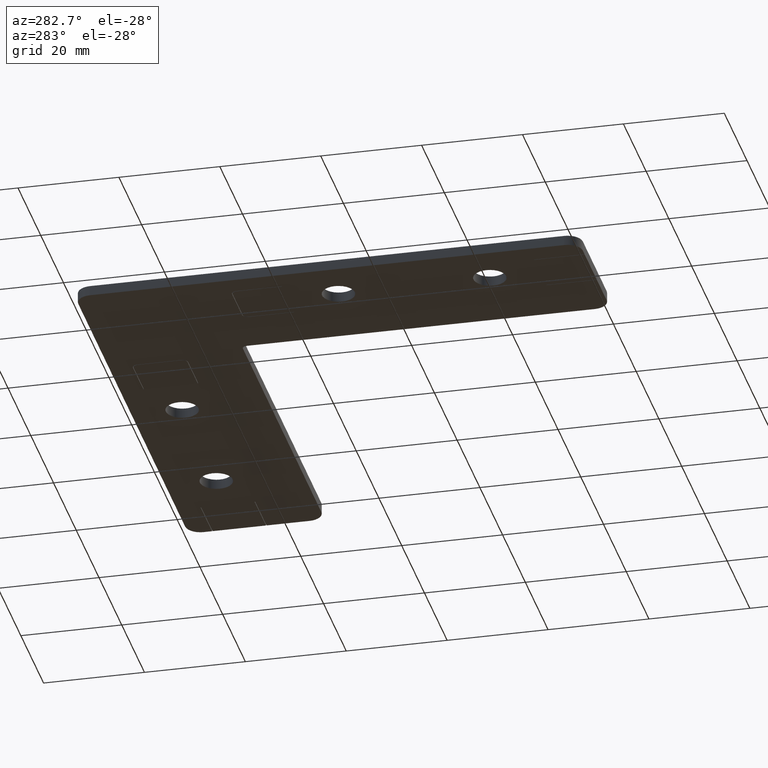
[diagram: clean part render]
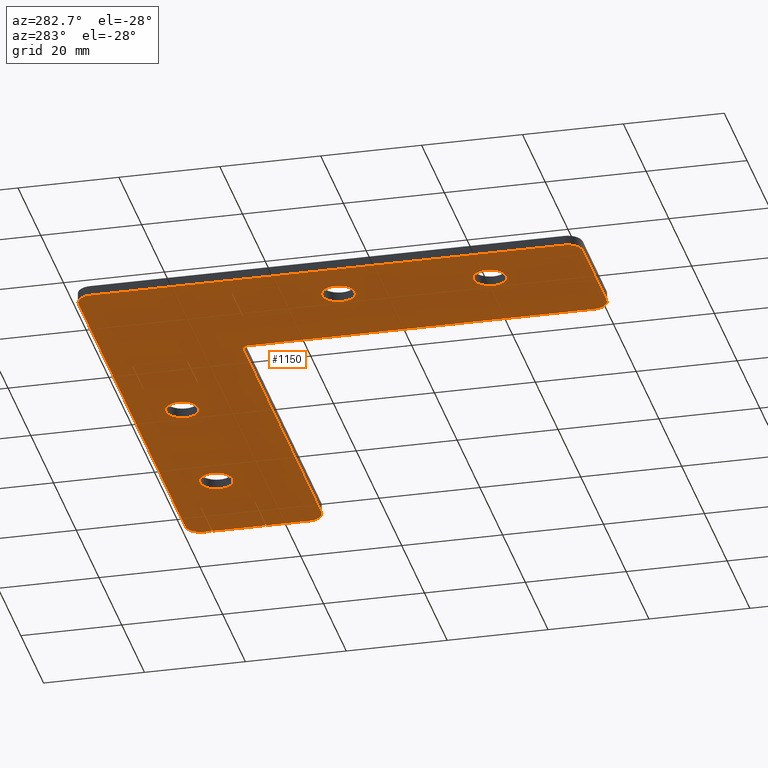
[diagram: same view with one face highlighted and labeled with its STEP entity id]
A machine part, auxiliary view. The second image highlights one B-rep face of the part: STEP entity #1150.
In plain terms, the highlighted planar face has unit normal (0, 0, 1).
Its self-contained STEP definition (entity closure, byte-faithful):
#21=FACE_BOUND('',#153,.T.);
#22=FACE_BOUND('',#154,.T.);
#23=FACE_BOUND('',#155,.T.);
#24=FACE_BOUND('',#156,.T.);
#25=FACE_BOUND('',#157,.T.);
#26=FACE_BOUND('',#158,.T.);
#38=PLANE('',#1259);
#88=FACE_OUTER_BOUND('',#152,.T.);
#152=EDGE_LOOP('',(#911,#912,#913,#914,#915,#916,#917,#918,#919,#920,#921,
#922,#923,#924,#925,#926,#927,#928,#929,#930,#931,#932,#933,#934,#935,#936,
#937,#938));
#153=EDGE_LOOP('',(#939));
#154=EDGE_LOOP('',(#940));
#155=EDGE_LOOP('',(#941));
#156=EDGE_LOOP('',(#942));
#157=EDGE_LOOP('',(#943,#944,#945,#946,#947,#948,#949,#950,#951,#952,#953,
#954));
#158=EDGE_LOOP('',(#955,#956,#957,#958,#959,#960,#961,#962,#963,#964,#965,
#966));
#195=CIRCLE('',#1211,1.);
#197=CIRCLE('',#1215,3.);
#199=CIRCLE('',#1221,3.);
#201=CIRCLE('',#1225,3.);
#203=CIRCLE('',#1229,3.);
#205=CIRCLE('',#1235,3.);
#208=CIRCLE('',#1240,3.25);
#210=CIRCLE('',#1243,3.25);
#212=CIRCLE('',#1246,3.25);
#214=CIRCLE('',#1249,3.25);
#223=CIRCLE('',#1260,1.);
#224=CIRCLE('',#1261,1.);
#225=CIRCLE('',#1262,1.1);
#226=CIRCLE('',#1263,1.1);
#227=CIRCLE('',#1264,1.);
#228=CIRCLE('',#1265,0.999999999999886);
#229=CIRCLE('',#1266,1.09999999999989);
#230=CIRCLE('',#1267,1.1);
#233=LINE('',#1638,#365);
#237=LINE('',#1650,#369);
#242=LINE('',#1661,#374);
#245=LINE('',#1668,#377);
#249=LINE('',#1680,#381);
#253=LINE('',#1692,#385);
#257=LINE('',#1704,#389);
#262=LINE('',#1715,#394);
#265=LINE('',#1722,#397);
#269=LINE('',#1733,#401);
#303=LINE('',#1830,#435);
#304=LINE('',#1832,#436);
#305=LINE('',#1833,#437);
#306=LINE('',#1835,#438);
#307=LINE('',#1837,#439);
#308=LINE('',#1838,#440);
#309=LINE('',#1840,#441);
#310=LINE('',#1842,#442);
#311=LINE('',#1843,#443);
#312=LINE('',#1845,#444);
#313=LINE('',#1847,#445);
#314=LINE('',#1848,#446);
#315=LINE('',#1851,#447);
#316=LINE('',#1853,#448);
#317=LINE('',#1857,#449);
#318=LINE('',#1861,#450);
#319=LINE('',#1863,#451);
#320=LINE('',#1865,#452);
#321=LINE('',#1869,#453);
#322=LINE('',#1872,#454);
#323=LINE('',#1875,#455);
#324=LINE('',#1877,#456);
#325=LINE('',#1881,#457);
#326=LINE('',#1885,#458);
#327=LINE('',#1887,#459);
#328=LINE('',#1889,#460);
#329=LINE('',#1893,#461);
#330=LINE('',#1896,#462);
#365=VECTOR('',#1316,68.9998597412108);
#369=VECTOR('',#1328,8.55000000000002);
#374=VECTOR('',#1335,1.65000000000003);
#377=VECTOR('',#1340,10.6);
#381=VECTOR('',#1352,93.9998597412108);
#385=VECTOR('',#1364,93.9998597412109);
#389=VECTOR('',#1376,1.55000000000004);
#394=VECTOR('',#1383,8.65000000000004);
#397=VECTOR('',#1388,10.5999999999999);
#401=VECTOR('',#1400,68.9998597412109);
#435=VECTOR('',#1478,10.);
#436=VECTOR('',#1479,0.0999999999999923);
#437=VECTOR('',#1480,10.);
#438=VECTOR('',#1481,10.);
#439=VECTOR('',#1482,0.0999999999999945);
#440=VECTOR('',#1483,10.);
#441=VECTOR('',#1484,9.99999999999998);
#442=VECTOR('',#1485,0.0999999999999979);
#443=VECTOR('',#1486,9.99999999999998);
#444=VECTOR('',#1487,9.99999999999998);
#445=VECTOR('',#1488,0.0999999999999979);
#446=VECTOR('',#1489,9.99999999999998);
#447=VECTOR('',#1490,0.0999999999999945);
#448=VECTOR('',#1491,9.);
#449=VECTOR('',#1494,8.69999999999993);
#450=VECTOR('',#1497,9.);
#451=VECTOR('',#1498,0.0999999999999979);
#452=VECTOR('',#1499,9.);
#453=VECTOR('',#1502,8.69999999999993);
#454=VECTOR('',#1505,9.);
#455=VECTOR('',#1506,0.0999999999999979);
#456=VECTOR('',#1507,9.);
#457=VECTOR('',#1510,8.70000000000008);
#458=VECTOR('',#1513,9.00000000000011);
#459=VECTOR('',#1514,0.0999999999999979);
#460=VECTOR('',#1515,9.00000000000011);
#461=VECTOR('',#1518,8.70000000000008);
#462=VECTOR('',#1521,9.);
#496=VERTEX_POINT('',#1629);
#497=VERTEX_POINT('',#1631);
#499=VERTEX_POINT('',#1637);
#501=VERTEX_POINT('',#1643);
#503=VERTEX_POINT('',#1649);
#507=VERTEX_POINT('',#1658);
#508=VERTEX_POINT('',#1660);
#510=VERTEX_POINT('',#1665);
#511=VERTEX_POINT('',#1667);
#513=VERTEX_POINT('',#1673);
#515=VERTEX_POINT('',#1679);
#517=VERTEX_POINT('',#1685);
#519=VERTEX_POINT('',#1691);
#521=VERTEX_POINT('',#1697);
#523=VERTEX_POINT('',#1703);
#527=VERTEX_POINT('',#1712);
#528=VERTEX_POINT('',#1714);
#530=VERTEX_POINT('',#1719);
#531=VERTEX_POINT('',#1721);
#533=VERTEX_POINT('',#1727);
#536=VERTEX_POINT('',#1738);
#538=VERTEX_POINT('',#1744);
#540=VERTEX_POINT('',#1750);
#542=VERTEX_POINT('',#1756);
#575=VERTEX_POINT('',#1829);
#576=VERTEX_POINT('',#1831);
#577=VERTEX_POINT('',#1834);
#578=VERTEX_POINT('',#1836);
#579=VERTEX_POINT('',#1839);
#580=VERTEX_POINT('',#1841);
#581=VERTEX_POINT('',#1844);
#582=VERTEX_POINT('',#1846);
#583=VERTEX_POINT('',#1849);
#584=VERTEX_POINT('',#1850);
#585=VERTEX_POINT('',#1852);
#586=VERTEX_POINT('',#1854);
#587=VERTEX_POINT('',#1856);
#588=VERTEX_POINT('',#1858);
#589=VERTEX_POINT('',#1860);
#590=VERTEX_POINT('',#1862);
#591=VERTEX_POINT('',#1864);
#592=VERTEX_POINT('',#1866);
#593=VERTEX_POINT('',#1868);
#594=VERTEX_POINT('',#1870);
#595=VERTEX_POINT('',#1873);
#596=VERTEX_POINT('',#1874);
#597=VERTEX_POINT('',#1876);
#598=VERTEX_POINT('',#1878);
#599=VERTEX_POINT('',#1880);
#600=VERTEX_POINT('',#1882);
#601=VERTEX_POINT('',#1884);
#602=VERTEX_POINT('',#1886);
#603=VERTEX_POINT('',#1888);
#604=VERTEX_POINT('',#1890);
#605=VERTEX_POINT('',#1892);
#606=VERTEX_POINT('',#1894);
#608=EDGE_CURVE('',#496,#497,#195,.T.);
#611=EDGE_CURVE('',#497,#499,#233,.T.);
#614=EDGE_CURVE('',#499,#501,#197,.T.);
#617=EDGE_CURVE('',#501,#503,#237,.T.);
#622=EDGE_CURVE('',#507,#508,#242,.T.);
#625=EDGE_CURVE('',#510,#511,#245,.T.);
#628=EDGE_CURVE('',#508,#513,#199,.T.);
#631=EDGE_CURVE('',#513,#515,#249,.T.);
#634=EDGE_CURVE('',#515,#517,#201,.T.);
#637=EDGE_CURVE('',#517,#519,#253,.T.);
#640=EDGE_CURVE('',#519,#521,#203,.T.);
#643=EDGE_CURVE('',#521,#523,#257,.T.);
#648=EDGE_CURVE('',#527,#528,#262,.T.);
#651=EDGE_CURVE('',#530,#531,#265,.T.);
#654=EDGE_CURVE('',#528,#533,#205,.T.);
#657=EDGE_CURVE('',#533,#496,#269,.T.);
#661=EDGE_CURVE('',#536,#536,#208,.T.);
#664=EDGE_CURVE('',#538,#538,#210,.T.);
#667=EDGE_CURVE('',#540,#540,#212,.T.);
#670=EDGE_CURVE('',#542,#542,#214,.T.);
#707=EDGE_CURVE('',#527,#575,#303,.T.);
#708=EDGE_CURVE('',#576,#575,#304,.T.);
#709=EDGE_CURVE('',#531,#576,#305,.T.);
#710=EDGE_CURVE('',#530,#577,#306,.T.);
#711=EDGE_CURVE('',#578,#577,#307,.T.);
#712=EDGE_CURVE('',#523,#578,#308,.T.);
#713=EDGE_CURVE('',#507,#579,#309,.T.);
#714=EDGE_CURVE('',#580,#579,#310,.T.);
#715=EDGE_CURVE('',#511,#580,#311,.T.);
#716=EDGE_CURVE('',#510,#581,#312,.T.);
#717=EDGE_CURVE('',#582,#581,#313,.T.);
#718=EDGE_CURVE('',#503,#582,#314,.T.);
#719=EDGE_CURVE('',#583,#584,#315,.T.);
#720=EDGE_CURVE('',#584,#585,#316,.T.);
#721=EDGE_CURVE('',#586,#585,#223,.T.);
#722=EDGE_CURVE('',#586,#587,#317,.T.);
#723=EDGE_CURVE('',#588,#587,#224,.T.);
#724=EDGE_CURVE('',#588,#589,#318,.T.);
#725=EDGE_CURVE('',#589,#590,#319,.T.);
#726=EDGE_CURVE('',#590,#591,#320,.T.);
#727=EDGE_CURVE('',#592,#591,#225,.T.);
#728=EDGE_CURVE('',#592,#593,#321,.T.);
#729=EDGE_CURVE('',#594,#593,#226,.T.);
#730=EDGE_CURVE('',#583,#594,#322,.T.);
#731=EDGE_CURVE('',#595,#596,#323,.T.);
#732=EDGE_CURVE('',#596,#597,#324,.T.);
#733=EDGE_CURVE('',#598,#597,#227,.T.);
#734=EDGE_CURVE('',#598,#599,#325,.T.);
#735=EDGE_CURVE('',#600,#599,#228,.T.);
#736=EDGE_CURVE('',#600,#601,#326,.T.);
#737=EDGE_CURVE('',#601,#602,#327,.T.);
#738=EDGE_CURVE('',#602,#603,#328,.T.);
#739=EDGE_CURVE('',#604,#603,#229,.T.);
#740=EDGE_CURVE('',#604,#605,#329,.T.);
#741=EDGE_CURVE('',#606,#605,#230,.T.);
#742=EDGE_CURVE('',#595,#606,#330,.T.);
#911=ORIENTED_EDGE('',*,*,#657,.F.);
#912=ORIENTED_EDGE('',*,*,#654,.F.);
#913=ORIENTED_EDGE('',*,*,#648,.F.);
#914=ORIENTED_EDGE('',*,*,#707,.T.);
#915=ORIENTED_EDGE('',*,*,#708,.F.);
#916=ORIENTED_EDGE('',*,*,#709,.F.);
#917=ORIENTED_EDGE('',*,*,#651,.F.);
#918=ORIENTED_EDGE('',*,*,#710,.T.);
#919=ORIENTED_EDGE('',*,*,#711,.F.);
#920=ORIENTED_EDGE('',*,*,#712,.F.);
#921=ORIENTED_EDGE('',*,*,#643,.F.);
#922=ORIENTED_EDGE('',*,*,#640,.F.);
#923=ORIENTED_EDGE('',*,*,#637,.F.);
#924=ORIENTED_EDGE('',*,*,#634,.F.);
#925=ORIENTED_EDGE('',*,*,#631,.F.);
#926=ORIENTED_EDGE('',*,*,#628,.F.);
#927=ORIENTED_EDGE('',*,*,#622,.F.);
#928=ORIENTED_EDGE('',*,*,#713,.T.);
#929=ORIENTED_EDGE('',*,*,#714,.F.);
#930=ORIENTED_EDGE('',*,*,#715,.F.);
#931=ORIENTED_EDGE('',*,*,#625,.F.);
#932=ORIENTED_EDGE('',*,*,#716,.T.);
#933=ORIENTED_EDGE('',*,*,#717,.F.);
#934=ORIENTED_EDGE('',*,*,#718,.F.);
#935=ORIENTED_EDGE('',*,*,#617,.F.);
#936=ORIENTED_EDGE('',*,*,#614,.F.);
#937=ORIENTED_EDGE('',*,*,#611,.F.);
#938=ORIENTED_EDGE('',*,*,#608,.F.);
#939=ORIENTED_EDGE('',*,*,#661,.F.);
#940=ORIENTED_EDGE('',*,*,#664,.F.);
#941=ORIENTED_EDGE('',*,*,#667,.F.);
#942=ORIENTED_EDGE('',*,*,#670,.F.);
#943=ORIENTED_EDGE('',*,*,#719,.T.);
#944=ORIENTED_EDGE('',*,*,#720,.T.);
#945=ORIENTED_EDGE('',*,*,#721,.F.);
#946=ORIENTED_EDGE('',*,*,#722,.T.);
#947=ORIENTED_EDGE('',*,*,#723,.F.);
#948=ORIENTED_EDGE('',*,*,#724,.T.);
#949=ORIENTED_EDGE('',*,*,#725,.T.);
#950=ORIENTED_EDGE('',*,*,#726,.T.);
#951=ORIENTED_EDGE('',*,*,#727,.F.);
#952=ORIENTED_EDGE('',*,*,#728,.T.);
#953=ORIENTED_EDGE('',*,*,#729,.F.);
#954=ORIENTED_EDGE('',*,*,#730,.F.);
#955=ORIENTED_EDGE('',*,*,#731,.T.);
#956=ORIENTED_EDGE('',*,*,#732,.T.);
#957=ORIENTED_EDGE('',*,*,#733,.F.);
#958=ORIENTED_EDGE('',*,*,#734,.T.);
#959=ORIENTED_EDGE('',*,*,#735,.F.);
#960=ORIENTED_EDGE('',*,*,#736,.T.);
#961=ORIENTED_EDGE('',*,*,#737,.T.);
#962=ORIENTED_EDGE('',*,*,#738,.T.);
#963=ORIENTED_EDGE('',*,*,#739,.F.);
#964=ORIENTED_EDGE('',*,*,#740,.T.);
#965=ORIENTED_EDGE('',*,*,#741,.F.);
#966=ORIENTED_EDGE('',*,*,#742,.F.);
#1150=ADVANCED_FACE('',(#88,#21,#22,#23,#24,#25,#26),#38,.F.);
#1211=AXIS2_PLACEMENT_3D('',#1632,#1309,#1310);
#1215=AXIS2_PLACEMENT_3D('',#1644,#1321,#1322);
#1221=AXIS2_PLACEMENT_3D('',#1674,#1345,#1346);
#1225=AXIS2_PLACEMENT_3D('',#1686,#1357,#1358);
#1229=AXIS2_PLACEMENT_3D('',#1698,#1369,#1370);
#1235=AXIS2_PLACEMENT_3D('',#1728,#1393,#1394);
#1240=AXIS2_PLACEMENT_3D('',#1740,#1407,#1408);
#1243=AXIS2_PLACEMENT_3D('',#1746,#1414,#1415);
#1246=AXIS2_PLACEMENT_3D('',#1752,#1421,#1422);
#1249=AXIS2_PLACEMENT_3D('',#1758,#1428,#1429);
#1259=AXIS2_PLACEMENT_3D('',#1828,#1476,#1477);
#1260=AXIS2_PLACEMENT_3D('',#1855,#1492,#1493);
#1261=AXIS2_PLACEMENT_3D('',#1859,#1495,#1496);
#1262=AXIS2_PLACEMENT_3D('',#1867,#1500,#1501);
#1263=AXIS2_PLACEMENT_3D('',#1871,#1503,#1504);
#1264=AXIS2_PLACEMENT_3D('',#1879,#1508,#1509);
#1265=AXIS2_PLACEMENT_3D('',#1883,#1511,#1512);
#1266=AXIS2_PLACEMENT_3D('',#1891,#1516,#1517);
#1267=AXIS2_PLACEMENT_3D('',#1895,#1519,#1520);
#1309=DIRECTION('center_axis',(0.,0.,-1.));
#1310=DIRECTION('ref_axis',(1.,0.,0.));
#1316=DIRECTION('',(1.,0.,0.));
#1321=DIRECTION('center_axis',(0.,0.,1.));
#1322=DIRECTION('ref_axis',(1.,0.,0.));
#1328=DIRECTION('',(0.,1.,0.));
#1335=DIRECTION('',(0.,1.,0.));
#1340=DIRECTION('',(0.,1.,0.));
#1345=DIRECTION('center_axis',(0.,0.,1.));
#1346=DIRECTION('ref_axis',(1.,0.,0.));
#1352=DIRECTION('',(-1.,0.,0.));
#1357=DIRECTION('center_axis',(0.,0.,1.));
#1358=DIRECTION('ref_axis',(1.,0.,0.));
#1364=DIRECTION('',(0.,-1.,0.));
#1369=DIRECTION('center_axis',(0.,0.,1.));
#1370=DIRECTION('ref_axis',(1.,0.,0.));
#1376=DIRECTION('',(1.,0.,0.));
#1383=DIRECTION('',(1.,0.,0.));
#1388=DIRECTION('',(1.,0.,0.));
#1393=DIRECTION('center_axis',(0.,0.,1.));
#1394=DIRECTION('ref_axis',(1.,0.,0.));
#1400=DIRECTION('',(0.,1.,0.));
#1407=DIRECTION('center_axis',(0.,0.,-1.));
#1408=DIRECTION('ref_axis',(1.,0.,0.));
#1414=DIRECTION('center_axis',(0.,0.,-1.));
#1415=DIRECTION('ref_axis',(1.,0.,0.));
#1421=DIRECTION('center_axis',(0.,0.,-1.));
#1422=DIRECTION('ref_axis',(1.,0.,0.));
#1428=DIRECTION('center_axis',(0.,0.,-1.));
#1429=DIRECTION('ref_axis',(1.,0.,0.));
#1476=DIRECTION('center_axis',(0.,0.,1.));
#1477=DIRECTION('ref_axis',(1.,0.,0.));
#1478=DIRECTION('',(0.,1.,0.));
#1479=DIRECTION('',(1.,0.,0.));
#1480=DIRECTION('',(0.,1.,0.));
#1481=DIRECTION('',(0.,1.,0.));
#1482=DIRECTION('',(1.,0.,0.));
#1483=DIRECTION('',(0.,1.,0.));
#1484=DIRECTION('',(-1.,0.,0.));
#1485=DIRECTION('',(0.,1.,0.));
#1486=DIRECTION('',(-1.,0.,0.));
#1487=DIRECTION('',(-1.,0.,0.));
#1488=DIRECTION('',(0.,1.,0.));
#1489=DIRECTION('',(-1.,0.,0.));
#1490=DIRECTION('',(1.,0.,0.));
#1491=DIRECTION('',(0.,1.,0.));
#1492=DIRECTION('center_axis',(0.,0.,1.));
#1493=DIRECTION('ref_axis',(1.,0.,0.));
#1494=DIRECTION('',(1.,0.,0.));
#1495=DIRECTION('center_axis',(0.,0.,1.));
#1496=DIRECTION('ref_axis',(1.,0.,0.));
#1497=DIRECTION('',(0.,-1.,0.));
#1498=DIRECTION('',(1.,0.,0.));
#1499=DIRECTION('',(0.,1.,0.));
#1500=DIRECTION('center_axis',(0.,0.,-1.));
#1501=DIRECTION('ref_axis',(1.,0.,0.));
#1502=DIRECTION('',(-1.,0.,0.));
#1503=DIRECTION('center_axis',(0.,0.,-1.));
#1504=DIRECTION('ref_axis',(1.,0.,0.));
#1505=DIRECTION('',(0.,1.,0.));
#1506=DIRECTION('',(0.,1.,0.));
#1507=DIRECTION('',(-1.,0.,0.));
#1508=DIRECTION('center_axis',(0.,0.,1.));
#1509=DIRECTION('ref_axis',(1.,0.,0.));
#1510=DIRECTION('',(0.,1.,0.));
#1511=DIRECTION('center_axis',(0.,0.,1.));
#1512=DIRECTION('ref_axis',(1.,0.,0.));
#1513=DIRECTION('',(1.,0.,0.));
#1514=DIRECTION('',(0.,1.,0.));
#1515=DIRECTION('',(-1.,0.,0.));
#1516=DIRECTION('center_axis',(0.,0.,-1.));
#1517=DIRECTION('ref_axis',(1.,0.,0.));
#1518=DIRECTION('',(0.,-1.,0.));
#1519=DIRECTION('center_axis',(0.,0.,-1.));
#1520=DIRECTION('ref_axis',(1.,0.,0.));
#1521=DIRECTION('',(-1.,0.,0.));
#1629=CARTESIAN_POINT('',(17.05,71.9998597412109,-2.));
#1631=CARTESIAN_POINT('',(18.05,72.9998597412109,-2.));
#1632=CARTESIAN_POINT('Origin',(18.05,71.9998597412109,-2.));
#1637=CARTESIAN_POINT('',(87.0498597412109,72.9998597412109,-2.));
#1638=CARTESIAN_POINT('',(18.05,72.9998597412109,-2.));
#1643=CARTESIAN_POINT('',(90.0498597412109,75.9998597412109,-2.));
#1644=CARTESIAN_POINT('Origin',(87.0498597412109,75.9998597412109,-2.));
#1649=CARTESIAN_POINT('',(90.0498597412109,84.5498597412109,-2.));
#1650=CARTESIAN_POINT('',(90.0498597412109,75.9998597412109,-2.));
#1658=CARTESIAN_POINT('',(90.0498597412109,95.3498597412109,-2.));
#1660=CARTESIAN_POINT('',(90.0498597412109,96.9998597412109,-2.));
#1661=CARTESIAN_POINT('',(90.0498597412109,95.3498597412109,-2.));
#1665=CARTESIAN_POINT('',(90.0498597412109,84.6498597412109,-2.));
#1667=CARTESIAN_POINT('',(90.0498597412109,95.2498597412109,-2.));
#1668=CARTESIAN_POINT('',(90.0498597412109,84.6498597412109,-2.));
#1673=CARTESIAN_POINT('',(87.0498597412109,99.9998597412109,-2.));
#1674=CARTESIAN_POINT('Origin',(87.0498597412109,96.9998597412109,-2.));
#1679=CARTESIAN_POINT('',(-6.94999999999999,99.9998597412109,-2.));
#1680=CARTESIAN_POINT('',(87.0498597412109,99.9998597412109,-2.));
#1685=CARTESIAN_POINT('',(-9.94999999999999,96.9998597412109,-2.));
#1686=CARTESIAN_POINT('Origin',(-6.94999999999999,96.9998597412109,-2.));
#1691=CARTESIAN_POINT('',(-9.94999999999999,3.,-2.));
#1692=CARTESIAN_POINT('',(-9.94999999999999,96.9998597412109,-2.));
#1697=CARTESIAN_POINT('',(-6.94999999999999,0.,-2.));
#1698=CARTESIAN_POINT('Origin',(-6.94999999999999,3.,-2.));
#1703=CARTESIAN_POINT('',(-5.39999999999995,0.,-2.));
#1704=CARTESIAN_POINT('',(-6.94999999999999,0.,-2.));
#1712=CARTESIAN_POINT('',(5.39999999999998,0.,-2.));
#1714=CARTESIAN_POINT('',(14.05,0.,-2.));
#1715=CARTESIAN_POINT('',(5.39999999999998,0.,-2.));
#1719=CARTESIAN_POINT('',(-5.29999999999995,0.,-2.));
#1721=CARTESIAN_POINT('',(5.29999999999998,0.,-2.));
#1722=CARTESIAN_POINT('',(-5.29999999999995,0.,-2.));
#1727=CARTESIAN_POINT('',(17.05,3.,-2.));
#1728=CARTESIAN_POINT('Origin',(14.05,3.,-2.));
#1733=CARTESIAN_POINT('',(17.05,3.,-2.));
#1738=CARTESIAN_POINT('',(-3.19999999999999,50.,-2.));
#1740=CARTESIAN_POINT('Origin',(0.050000000000011,50.,-2.));
#1744=CARTESIAN_POINT('',(-3.19999999999999,20.,-2.));
#1746=CARTESIAN_POINT('Origin',(0.050000000000011,20.,-2.));
#1750=CARTESIAN_POINT('',(36.7998597412109,89.9998597412109,-2.));
#1752=CARTESIAN_POINT('Origin',(40.0498597412109,89.9998597412109,-2.));
#1756=CARTESIAN_POINT('',(66.7998597412109,89.9998597412109,-2.));
#1758=CARTESIAN_POINT('Origin',(70.0498597412109,89.9998597412109,-2.));
#1828=CARTESIAN_POINT('Origin',(-19.9501059747863,-10.0001059745464,-2.));
#1829=CARTESIAN_POINT('',(5.39999999999998,10.,-2.));
#1830=CARTESIAN_POINT('',(5.39999999999998,0.,-2.));
#1831=CARTESIAN_POINT('',(5.29999999999998,10.,-2.));
#1832=CARTESIAN_POINT('',(5.29999999999998,10.,-2.));
#1833=CARTESIAN_POINT('',(5.29999999999998,0.,-2.));
#1834=CARTESIAN_POINT('',(-5.29999999999995,10.,-2.));
#1835=CARTESIAN_POINT('',(-5.29999999999995,0.,-2.));
#1836=CARTESIAN_POINT('',(-5.39999999999995,10.,-2.));
#1837=CARTESIAN_POINT('',(-5.39999999999995,10.,-2.));
#1838=CARTESIAN_POINT('',(-5.39999999999995,0.,-2.));
#1839=CARTESIAN_POINT('',(80.0498597412109,95.3498597412109,-2.));
#1840=CARTESIAN_POINT('',(90.0498597412109,95.3498597412109,-2.));
#1841=CARTESIAN_POINT('',(80.0498597412109,95.2498597412109,-2.));
#1842=CARTESIAN_POINT('',(80.0498597412109,95.2498597412109,-2.));
#1843=CARTESIAN_POINT('',(90.0498597412109,95.2498597412109,-2.));
#1844=CARTESIAN_POINT('',(80.0498597412109,84.6498597412109,-2.));
#1845=CARTESIAN_POINT('',(90.0498597412109,84.6498597412109,-2.));
#1846=CARTESIAN_POINT('',(80.0498597412109,84.5498597412109,-2.));
#1847=CARTESIAN_POINT('',(80.0498597412109,84.5498597412109,-2.));
#1848=CARTESIAN_POINT('',(90.0498597412109,84.5498597412109,-2.));
#1849=CARTESIAN_POINT('',(-5.39999999999995,60.,-2.));
#1850=CARTESIAN_POINT('',(-5.29999999999995,60.,-2.));
#1851=CARTESIAN_POINT('',(-5.39999999999995,60.,-2.));
#1852=CARTESIAN_POINT('',(-5.29999999999995,69.,-2.));
#1853=CARTESIAN_POINT('',(-5.29999999999995,60.,-2.));
#1854=CARTESIAN_POINT('',(-4.29999999999995,70.,-2.));
#1855=CARTESIAN_POINT('Origin',(-4.29999999999995,69.,-2.));
#1856=CARTESIAN_POINT('',(4.39999999999998,70.,-2.));
#1857=CARTESIAN_POINT('',(-4.29999999999995,70.,-2.));
#1858=CARTESIAN_POINT('',(5.39999999999998,69.,-2.));
#1859=CARTESIAN_POINT('Origin',(4.39999999999998,69.,-2.));
#1860=CARTESIAN_POINT('',(5.39999999999998,60.,-2.));
#1861=CARTESIAN_POINT('',(5.39999999999998,69.,-2.));
#1862=CARTESIAN_POINT('',(5.49999999999997,60.,-2.));
#1863=CARTESIAN_POINT('',(5.39999999999998,60.,-2.));
#1864=CARTESIAN_POINT('',(5.49999999999997,69.,-2.));
#1865=CARTESIAN_POINT('',(5.49999999999997,60.,-2.));
#1866=CARTESIAN_POINT('',(4.39999999999998,70.1,-2.));
#1867=CARTESIAN_POINT('Origin',(4.39999999999998,69.,-2.));
#1868=CARTESIAN_POINT('',(-4.29999999999995,70.1,-2.));
#1869=CARTESIAN_POINT('',(4.39999999999998,70.1,-2.));
#1870=CARTESIAN_POINT('',(-5.39999999999995,69.,-2.));
#1871=CARTESIAN_POINT('Origin',(-4.29999999999995,69.,-2.));
#1872=CARTESIAN_POINT('',(-5.39999999999995,60.,-2.));
#1873=CARTESIAN_POINT('',(30.0498597412109,84.5498597412109,-2.));
#1874=CARTESIAN_POINT('',(30.0498597412109,84.6498597412109,-2.));
#1875=CARTESIAN_POINT('',(30.0498597412109,84.5498597412109,-2.));
#1876=CARTESIAN_POINT('',(21.0498597412109,84.6498597412109,-2.));
#1877=CARTESIAN_POINT('',(30.0498597412109,84.6498597412109,-2.));
#1878=CARTESIAN_POINT('',(20.0498597412109,85.6498597412109,-2.));
#1879=CARTESIAN_POINT('Origin',(21.0498597412109,85.6498597412109,-2.));
#1880=CARTESIAN_POINT('',(20.0498597412109,94.349859741211,-2.));
#1881=CARTESIAN_POINT('',(20.0498597412109,85.6498597412109,-2.));
#1882=CARTESIAN_POINT('',(21.0498597412108,95.3498597412109,-2.));
#1883=CARTESIAN_POINT('Origin',(21.0498597412108,94.349859741211,-2.));
#1884=CARTESIAN_POINT('',(30.0498597412109,95.3498597412109,-2.));
#1885=CARTESIAN_POINT('',(21.0498597412108,95.3498597412109,-2.));
#1886=CARTESIAN_POINT('',(30.0498597412109,95.4498597412109,-2.));
#1887=CARTESIAN_POINT('',(30.0498597412109,95.3498597412109,-2.));
#1888=CARTESIAN_POINT('',(21.0498597412108,95.4498597412109,-2.));
#1889=CARTESIAN_POINT('',(30.0498597412109,95.4498597412109,-2.));
#1890=CARTESIAN_POINT('',(19.9498597412109,94.349859741211,-2.));
#1891=CARTESIAN_POINT('Origin',(21.0498597412108,94.349859741211,-2.));
#1892=CARTESIAN_POINT('',(19.9498597412109,85.6498597412109,-2.));
#1893=CARTESIAN_POINT('',(19.9498597412109,94.349859741211,-2.));
#1894=CARTESIAN_POINT('',(21.0498597412109,84.5498597412109,-2.));
#1895=CARTESIAN_POINT('Origin',(21.0498597412109,85.6498597412109,-2.));
#1896=CARTESIAN_POINT('',(30.0498597412109,84.5498597412109,-2.));